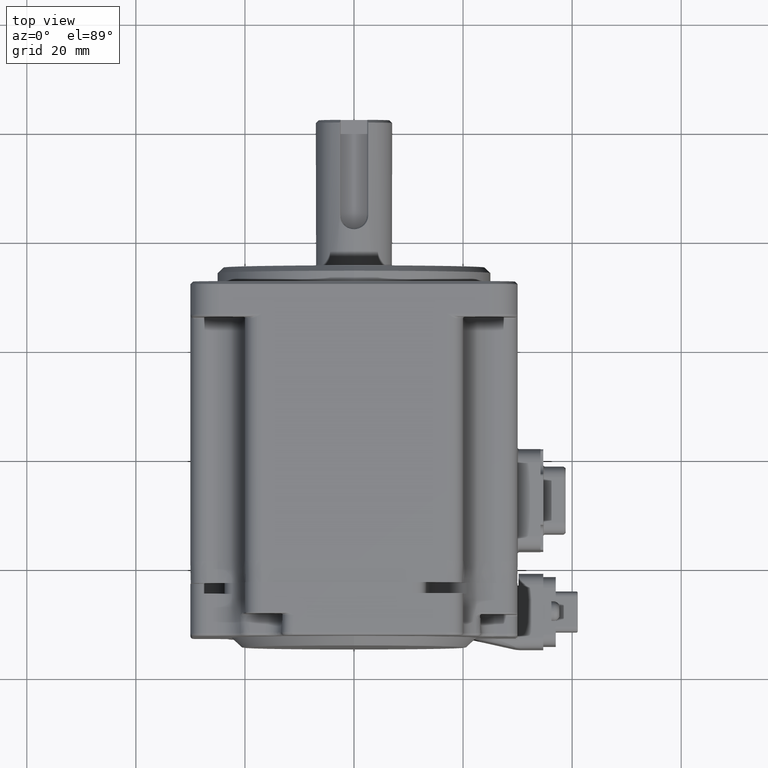
[diagram: clean part render]
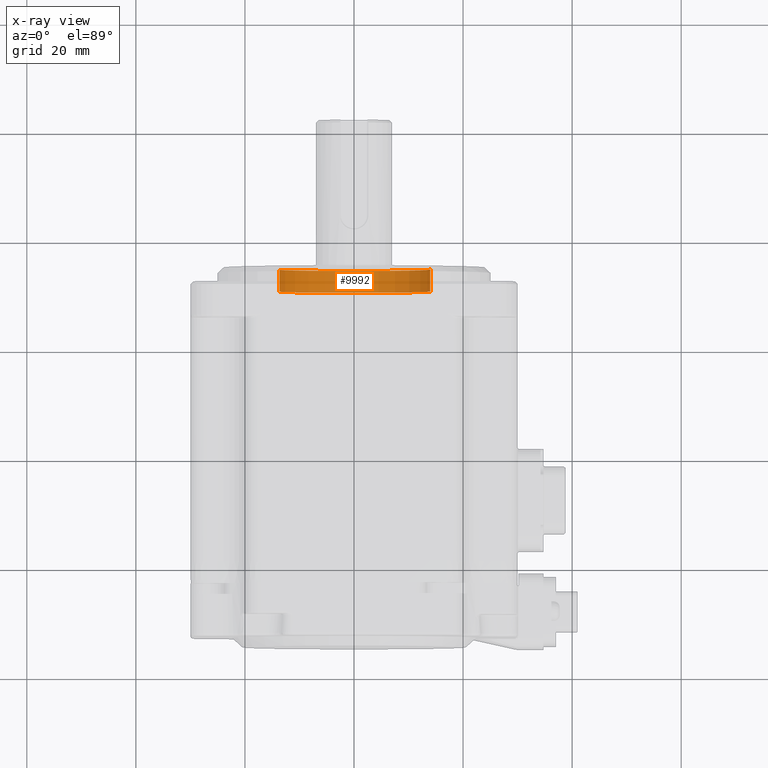
[diagram: x-ray — body ghosted, one internal face saturated and labeled with its STEP entity id]
A machine part, top view, then the same camera in x-ray: the body is ghosted and one INTERNAL B-rep face — a face not visible from any outside direction — is saturated and labeled: STEP entity #9992.
In plain terms, the highlighted cylindrical surface (partial cylindrical patch) has radius 14 mm, axis along (0, -1, 0).
Its self-contained STEP definition (entity closure, byte-faithful):
#768 = CARTESIAN_POINT ( 'NONE',  ( -9.909290922647978444E-16, 14.59999999999999787, 1.115418383475850112E-15 ) ) ;
#1374 = EDGE_CURVE ( 'NONE', #15639, #14033, #4802, .T. ) ;
#2739 = DIRECTION ( 'NONE',  ( 2.855582407503463977E-18, -1.000000000000000000, 7.146745457823829817E-17 ) ) ;
#3956 = CIRCLE ( 'NONE', #23392, 14.00000000000000000 ) ;
#4244 = CIRCLE ( 'NONE', #20065, 14.00000000000000000 ) ;
#4521 = CARTESIAN_POINT ( 'NONE',  ( 13.70672978775238349, 14.59999999999999787, 2.850536532925242117 ) ) ;
#4802 = LINE ( 'NONE', #4521, #7446 ) ;
#4951 = DIRECTION ( 'NONE',  ( 2.855582407503463977E-18, -1.000000000000000000, 7.146745457823829817E-17 ) ) ;
#5134 = DIRECTION ( 'NONE',  ( -0.9790521276965989950, 0.000000000000000000, -0.2036097523518030084 ) ) ;
#5514 = DIRECTION ( 'NONE',  ( 0.9790521276965989950, 0.000000000000000000, 0.2036097523518030084 ) ) ;
#6072 = ORIENTED_EDGE ( 'NONE', *, *, #16819, .T. ) ;
#6557 = EDGE_CURVE ( 'NONE', #27121, #24134, #19804, .T. ) ;
#7180 = VECTOR ( 'NONE', #4951, 1000.000000000000000 ) ;
#7446 = VECTOR ( 'NONE', #9183, 1000.000000000000000 ) ;
#9183 = DIRECTION ( 'NONE',  ( 2.855582407503463977E-18, -1.000000000000000000, 7.146745457823829817E-17 ) ) ;
#9351 = ORIENTED_EDGE ( 'NONE', *, *, #24535, .F. ) ;
#9683 = CARTESIAN_POINT ( 'NONE',  ( 13.70672978775238349, 10.59999999999999787, 2.850536532925242117 ) ) ;
#9992 = ADVANCED_FACE ( 'NONE', ( #20423 ), #15476, .T. ) ;
#10947 = DIRECTION ( 'NONE',  ( -2.855582407503463977E-18, 1.000000000000000000, -7.146745457823829817E-17 ) ) ;
#11685 = ORIENTED_EDGE ( 'NONE', *, *, #1374, .T. ) ;
#12932 = DIRECTION ( 'NONE',  ( 0.9790521276965989950, 0.000000000000000000, 0.2036097523518030084 ) ) ;
#14033 = VERTEX_POINT ( 'NONE', #9683 ) ;
#14776 = CARTESIAN_POINT ( 'NONE',  ( -9.909290922647978444E-16, 14.59999999999999787, 1.115418383475850112E-15 ) ) ;
#15476 = CYLINDRICAL_SURFACE ( 'NONE', #16764, 14.00000000000000000 ) ;
#15639 = VERTEX_POINT ( 'NONE', #16118 ) ;
#16118 = CARTESIAN_POINT ( 'NONE',  ( 13.70672978775238349, 14.59999999999999787, 2.850536532925242117 ) ) ;
#16764 = AXIS2_PLACEMENT_3D ( 'NONE', #768, #2739, #5134 ) ;
#16819 = EDGE_CURVE ( 'NONE', #14033, #24134, #3956, .T. ) ;
#17777 = EDGE_LOOP ( 'NONE', ( #9351, #11685, #6072, #27460 ) ) ;
#19804 = LINE ( 'NONE', #21792, #7180 ) ;
#20065 = AXIS2_PLACEMENT_3D ( 'NONE', #14776, #10947, #12932 ) ;
#20423 = FACE_OUTER_BOUND ( 'NONE', #17777, .T. ) ;
#20507 = CARTESIAN_POINT ( 'NONE',  ( -9.795067626347839916E-16, 10.59999999999999787, 1.401288201788803107E-15 ) ) ;
#21792 = CARTESIAN_POINT ( 'NONE',  ( -13.70672978775238704, 14.59999999999999787, -2.850536532925240785 ) ) ;
#23392 = AXIS2_PLACEMENT_3D ( 'NONE', #20507, #26750, #5514 ) ;
#24134 = VERTEX_POINT ( 'NONE', #25588 ) ;
#24535 = EDGE_CURVE ( 'NONE', #15639, #27121, #4244, .T. ) ;
#25588 = CARTESIAN_POINT ( 'NONE',  ( -13.70672978775238704, 10.59999999999999787, -2.850536532925240785 ) ) ;
#25919 = CARTESIAN_POINT ( 'NONE',  ( -13.70672978775238704, 14.59999999999999787, -2.850536532925240785 ) ) ;
#26750 = DIRECTION ( 'NONE',  ( -2.855582407503463977E-18, 1.000000000000000000, -7.146745457823829817E-17 ) ) ;
#27121 = VERTEX_POINT ( 'NONE', #25919 ) ;
#27460 = ORIENTED_EDGE ( 'NONE', *, *, #6557, .F. ) ;